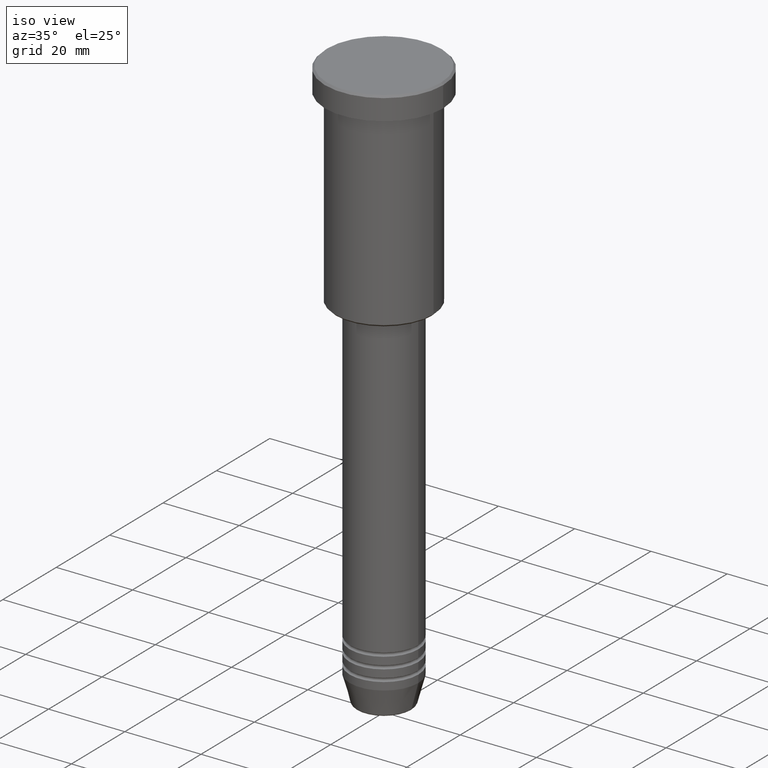
[diagram: clean part render]
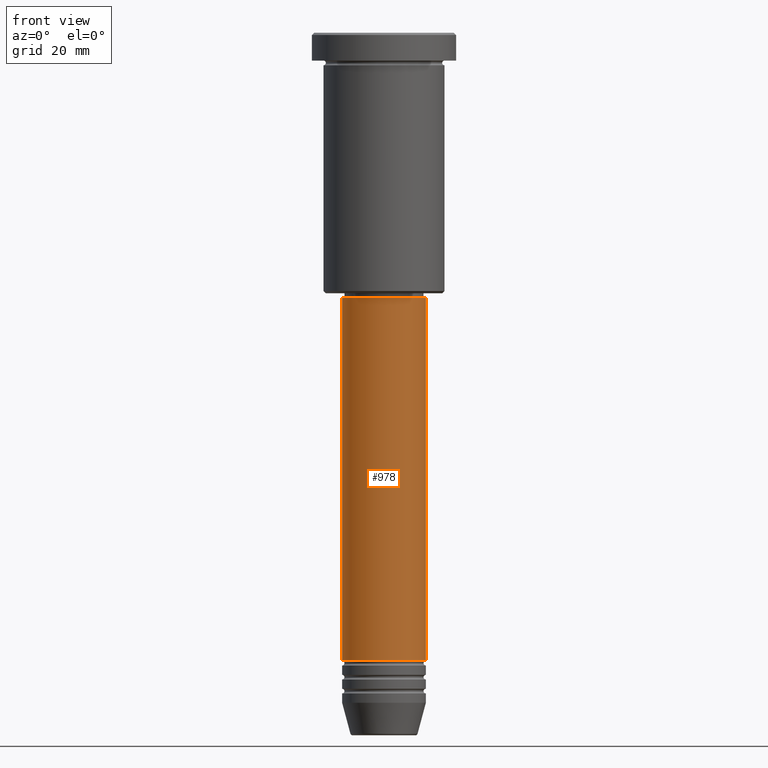
[diagram: tour spotlight — one face highlighted and labeled with its STEP entity id]
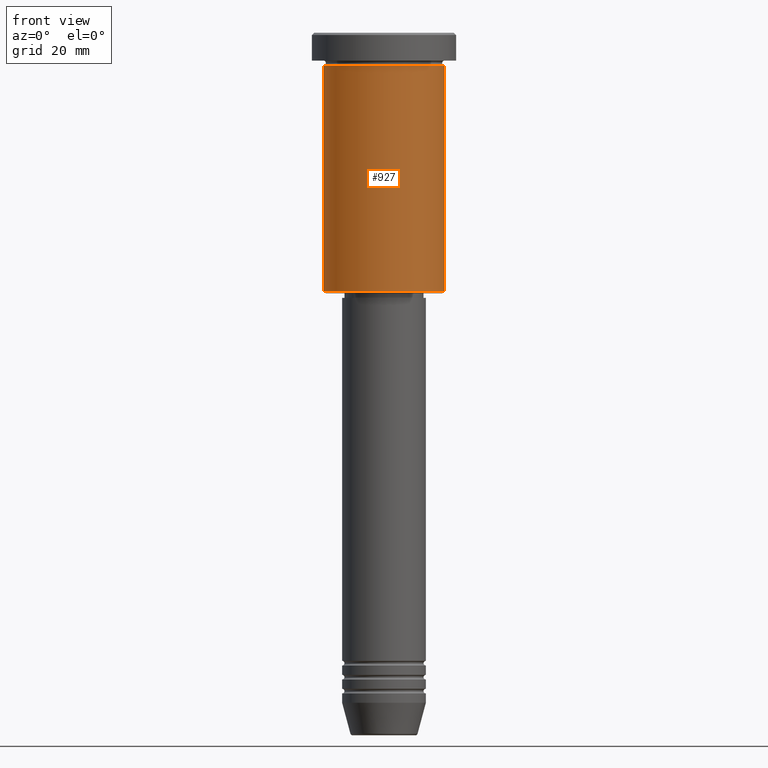
[diagram: tour spotlight — one face highlighted and labeled with its STEP entity id]
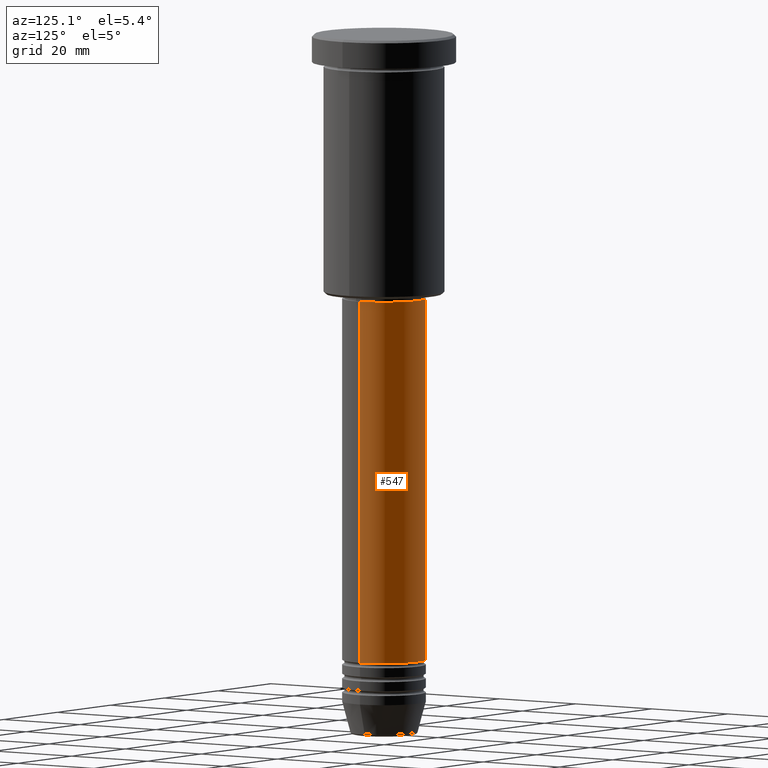
[diagram: tour spotlight — one face highlighted and labeled with its STEP entity id]
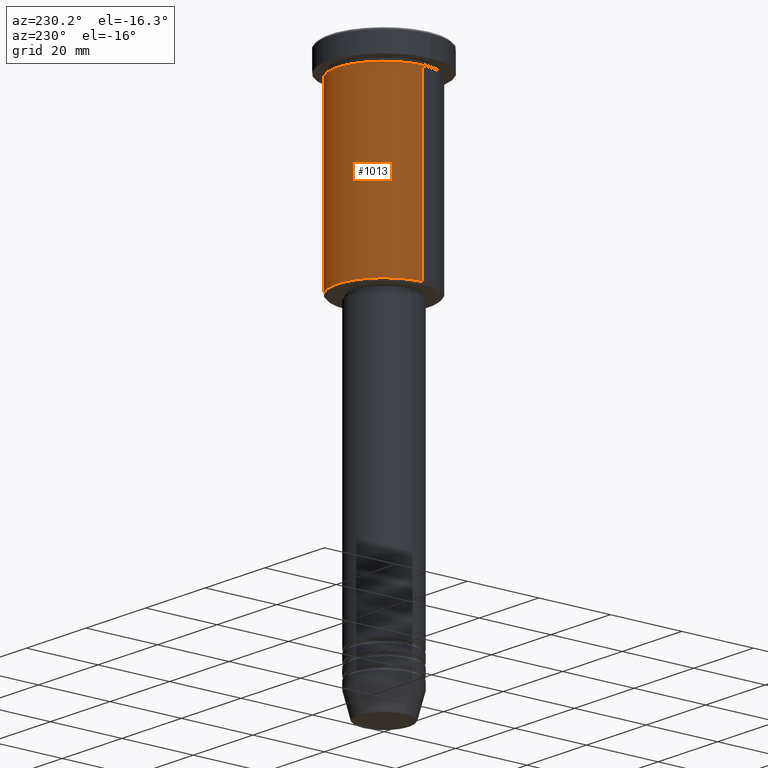
[diagram: tour spotlight — one face highlighted and labeled with its STEP entity id]
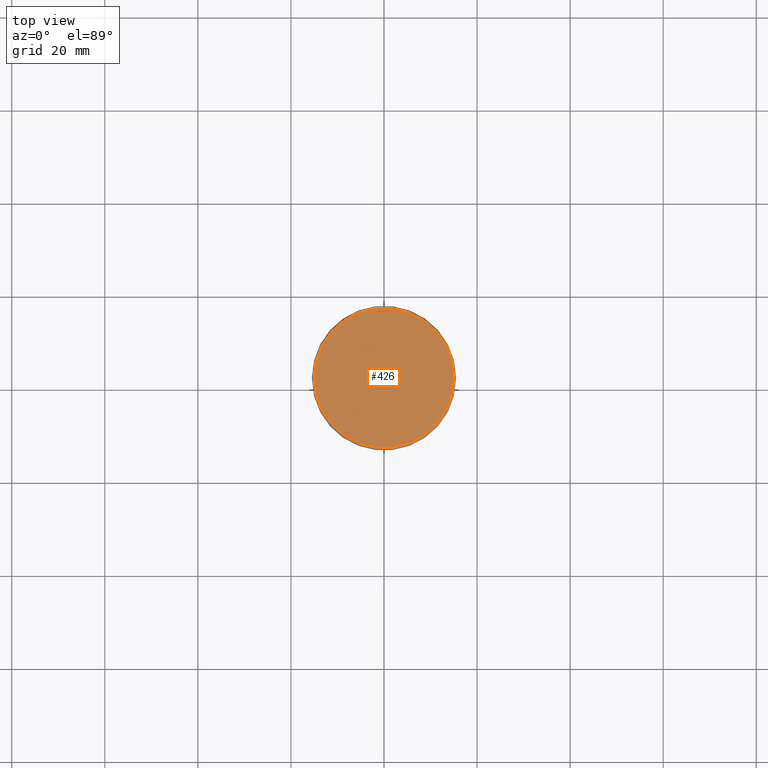
[diagram: tour spotlight — one face highlighted and labeled with its STEP entity id]
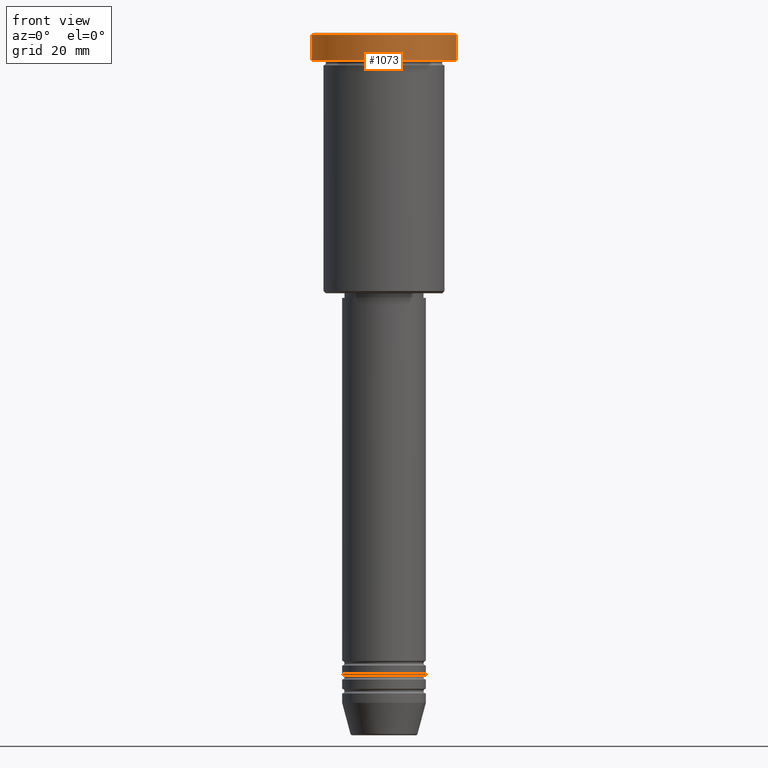
[diagram: tour spotlight — one face highlighted and labeled with its STEP entity id]
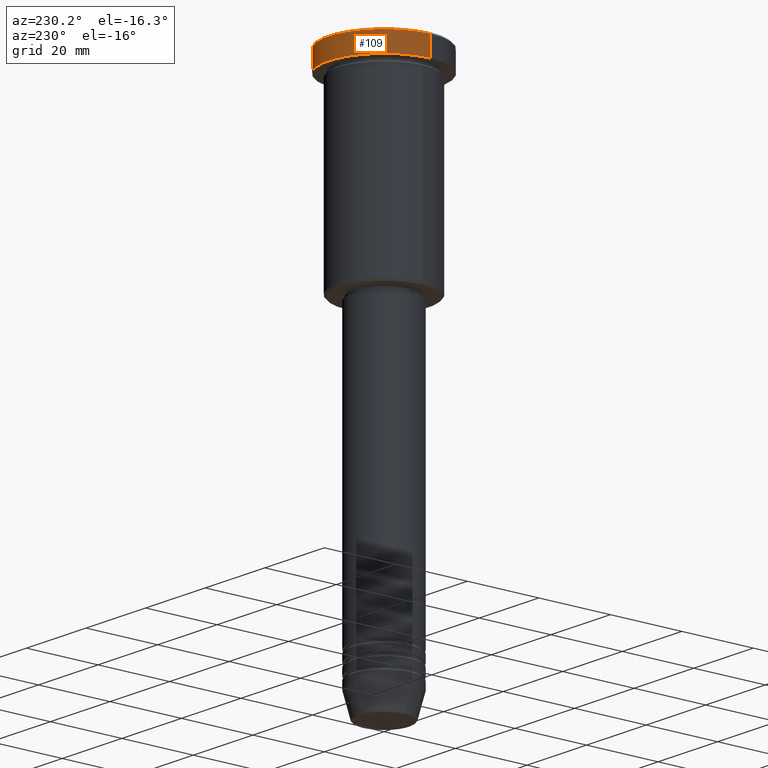
[diagram: tour spotlight — one face highlighted and labeled with its STEP entity id]
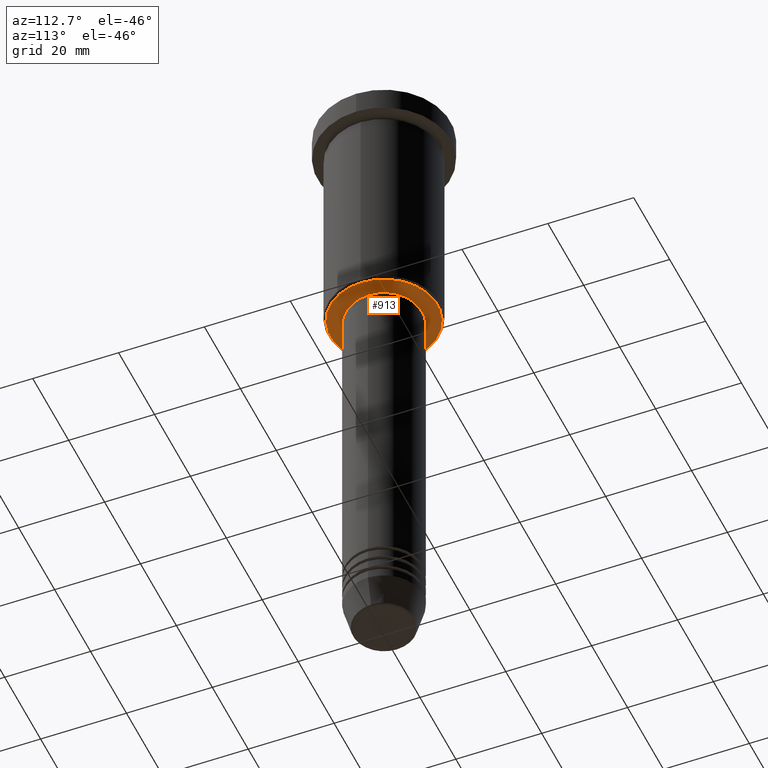
[diagram: tour spotlight — one face highlighted and labeled with its STEP entity id]
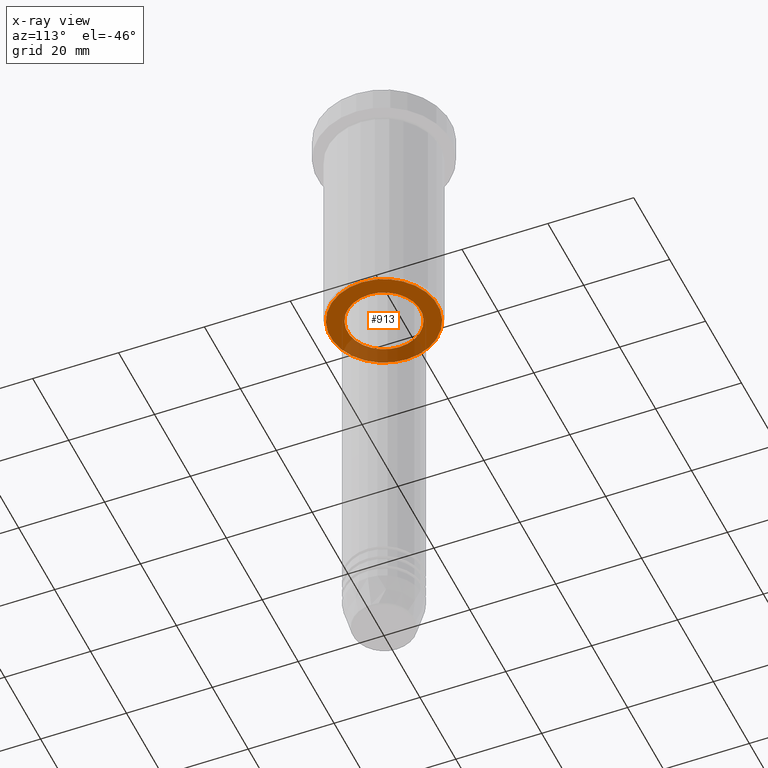
[diagram: x-ray of the same camera — body ghosted, this tour face saturated]
A machine part: a face-by-face anatomy tour. The part has 43 B-rep faces; the first image is the clean iso view, then the 8 largest visible faces are spotlighted one at a time (largest first), each with its STEP entity span.

Face 1 — front view, entity #978. In plain terms, the highlighted cylindrical surface (partial cylindrical patch) has radius 9 mm, axis along (-0, -0, 1).
Definition (entity closure, byte-faithful):
#27 = AXIS2_PLACEMENT_3D ( 'NONE', #415, #954, #206 ) ;
#32 = EDGE_CURVE ( 'NONE', #301, #732, #386, .T. ) ;
#72 = LINE ( 'NONE', #969, #654 ) ;
#81 = CIRCLE ( 'NONE', #740, 9.000000000000000000 ) ;
#98 = CARTESIAN_POINT ( 'NONE',  ( 9.000000000000000000, 0.000000000000000000, -134.9999999999999716 ) ) ;
#123 = CARTESIAN_POINT ( 'NONE',  ( 0.000000000000000000, 0.000000000000000000, -134.9999999999999716 ) ) ;
#161 = DIRECTION ( 'NONE',  ( -0.000000000000000000, -0.000000000000000000, 1.000000000000000000 ) ) ;
#166 = CARTESIAN_POINT ( 'NONE',  ( 9.000000000000000000, 0.000000000000000000, -57.00000000000001421 ) ) ;
#206 = DIRECTION ( 'NONE',  ( 1.000000000000000000, 0.000000000000000000, 0.000000000000000000 ) ) ;
#242 = DIRECTION ( 'NONE',  ( -0.000000000000000000, -0.000000000000000000, 1.000000000000000000 ) ) ;
#252 = CARTESIAN_POINT ( 'NONE',  ( 9.000000000000000000, 0.000000000000000000, 0.000000000000000000 ) ) ;
#264 = DIRECTION ( 'NONE',  ( 1.000000000000000000, 0.000000000000000000, 0.000000000000000000 ) ) ;
#298 = VERTEX_POINT ( 'NONE', #856 ) ;
#301 = VERTEX_POINT ( 'NONE', #877 ) ;
#321 = CYLINDRICAL_SURFACE ( 'NONE', #27, 9.000000000000000000 ) ;
#378 = CARTESIAN_POINT ( 'NONE',  ( 0.000000000000000000, 0.000000000000000000, -57.00000000000001421 ) ) ;
#386 = CIRCLE ( 'NONE', #1041, 9.000000000000000000 ) ;
#415 = CARTESIAN_POINT ( 'NONE',  ( 0.000000000000000000, 0.000000000000000000, 0.000000000000000000 ) ) ;
#462 = ORIENTED_EDGE ( 'NONE', *, *, #641, .T. ) ;
#574 = ORIENTED_EDGE ( 'NONE', *, *, #32, .F. ) ;
#613 = VECTOR ( 'NONE', #242, 1000.000000000000000 ) ;
#641 = EDGE_CURVE ( 'NONE', #298, #897, #81, .T. ) ;
#654 = VECTOR ( 'NONE', #161, 1000.000000000000000 ) ;
#713 = DIRECTION ( 'NONE',  ( -0.000000000000000000, -0.000000000000000000, 1.000000000000000000 ) ) ;
#732 = VERTEX_POINT ( 'NONE', #166 ) ;
#734 = EDGE_CURVE ( 'NONE', #897, #732, #1057, .T. ) ;
#740 = AXIS2_PLACEMENT_3D ( 'NONE', #123, #973, #1055 ) ;
#856 = CARTESIAN_POINT ( 'NONE',  ( -9.000000000000000000, 1.102182119232617714E-15, -134.9999999999999716 ) ) ;
#877 = CARTESIAN_POINT ( 'NONE',  ( -9.000000000000000000, 1.102182119232617714E-15, -57.00000000000001421 ) ) ;
#897 = VERTEX_POINT ( 'NONE', #98 ) ;
#909 = EDGE_LOOP ( 'NONE', ( #1098, #462, #1021, #574 ) ) ;
#939 = FACE_OUTER_BOUND ( 'NONE', #909, .T. ) ;
#954 = DIRECTION ( 'NONE',  ( -0.000000000000000000, -0.000000000000000000, 1.000000000000000000 ) ) ;
#969 = CARTESIAN_POINT ( 'NONE',  ( -9.000000000000000000, 1.102182119232617714E-15, 0.000000000000000000 ) ) ;
#973 = DIRECTION ( 'NONE',  ( -0.000000000000000000, -0.000000000000000000, 1.000000000000000000 ) ) ;
#978 = ADVANCED_FACE ( 'NONE', ( #939 ), #321, .T. ) ;
#1021 = ORIENTED_EDGE ( 'NONE', *, *, #734, .T. ) ;
#1041 = AXIS2_PLACEMENT_3D ( 'NONE', #378, #713, #264 ) ;
#1055 = DIRECTION ( 'NONE',  ( 1.000000000000000000, 0.000000000000000000, 0.000000000000000000 ) ) ;
#1057 = LINE ( 'NONE', #252, #613 ) ;
#1098 = ORIENTED_EDGE ( 'NONE', *, *, #1160, .F. ) ;
#1160 = EDGE_CURVE ( 'NONE', #298, #301, #72, .T. ) ;

Face 2 — front view, entity #927. In plain terms, the highlighted cylindrical surface (partial cylindrical patch) has radius 13 mm, axis along (-0, -0, 1).
Definition (entity closure, byte-faithful):
#10 = CYLINDRICAL_SURFACE ( 'NONE', #1065, 13.00000000000000000 ) ;
#46 = CIRCLE ( 'NONE', #615, 13.00000000000000000 ) ;
#68 = ORIENTED_EDGE ( 'NONE', *, *, #861, .T. ) ;
#83 = CARTESIAN_POINT ( 'NONE',  ( 0.000000000000000000, 0.000000000000000000, -55.50000000000002132 ) ) ;
#176 = LINE ( 'NONE', #187, #1009 ) ;
#186 = VERTEX_POINT ( 'NONE', #484 ) ;
#187 = CARTESIAN_POINT ( 'NONE',  ( -13.00000000000000000, 1.592040838891559095E-15, 0.000000000000000000 ) ) ;
#208 = EDGE_LOOP ( 'NONE', ( #784, #1032, #68, #1151 ) ) ;
#227 = CARTESIAN_POINT ( 'NONE',  ( 0.000000000000000000, 0.000000000000000000, -6.999999999999995559 ) ) ;
#232 = CARTESIAN_POINT ( 'NONE',  ( -13.00000000000000000, 1.592040838891559095E-15, -6.999999999999995559 ) ) ;
#249 = DIRECTION ( 'NONE',  ( -0.000000000000000000, -0.000000000000000000, 1.000000000000000000 ) ) ;
#256 = VECTOR ( 'NONE', #725, 1000.000000000000000 ) ;
#281 = DIRECTION ( 'NONE',  ( -0.000000000000000000, -0.000000000000000000, 1.000000000000000000 ) ) ;
#303 = CARTESIAN_POINT ( 'NONE',  ( 13.00000000000000000, 0.000000000000000000, -55.50000000000002132 ) ) ;
#374 = CARTESIAN_POINT ( 'NONE',  ( 0.000000000000000000, 0.000000000000000000, 0.000000000000000000 ) ) ;
#477 = DIRECTION ( 'NONE',  ( 1.000000000000000000, 0.000000000000000000, 0.000000000000000000 ) ) ;
#484 = CARTESIAN_POINT ( 'NONE',  ( 13.00000000000000000, 0.000000000000000000, -6.999999999999995559 ) ) ;
#535 = LINE ( 'NONE', #637, #256 ) ;
#545 = VERTEX_POINT ( 'NONE', #303 ) ;
#555 = CIRCLE ( 'NONE', #1167, 13.00000000000000000 ) ;
#573 = EDGE_CURVE ( 'NONE', #767, #186, #555, .T. ) ;
#615 = AXIS2_PLACEMENT_3D ( 'NONE', #83, #249, #714 ) ;
#622 = CARTESIAN_POINT ( 'NONE',  ( -13.00000000000000000, 1.592040838891559095E-15, -55.50000000000002132 ) ) ;
#637 = CARTESIAN_POINT ( 'NONE',  ( 13.00000000000000000, 0.000000000000000000, 0.000000000000000000 ) ) ;
#714 = DIRECTION ( 'NONE',  ( -1.000000000000000000, 0.000000000000000000, 0.000000000000000000 ) ) ;
#725 = DIRECTION ( 'NONE',  ( -0.000000000000000000, -0.000000000000000000, 1.000000000000000000 ) ) ;
#757 = DIRECTION ( 'NONE',  ( 1.000000000000000000, 0.000000000000000000, 0.000000000000000000 ) ) ;
#767 = VERTEX_POINT ( 'NONE', #232 ) ;
#784 = ORIENTED_EDGE ( 'NONE', *, *, #840, .F. ) ;
#824 = VERTEX_POINT ( 'NONE', #622 ) ;
#840 = EDGE_CURVE ( 'NONE', #824, #767, #176, .T. ) ;
#861 = EDGE_CURVE ( 'NONE', #545, #186, #535, .T. ) ;
#880 = FACE_OUTER_BOUND ( 'NONE', #208, .T. ) ;
#927 = ADVANCED_FACE ( 'NONE', ( #880 ), #10, .T. ) ;
#977 = DIRECTION ( 'NONE',  ( -0.000000000000000000, -0.000000000000000000, 1.000000000000000000 ) ) ;
#1009 = VECTOR ( 'NONE', #977, 1000.000000000000000 ) ;
#1032 = ORIENTED_EDGE ( 'NONE', *, *, #1169, .T. ) ;
#1065 = AXIS2_PLACEMENT_3D ( 'NONE', #374, #281, #757 ) ;
#1111 = DIRECTION ( 'NONE',  ( -0.000000000000000000, -0.000000000000000000, 1.000000000000000000 ) ) ;
#1151 = ORIENTED_EDGE ( 'NONE', *, *, #573, .F. ) ;
#1167 = AXIS2_PLACEMENT_3D ( 'NONE', #227, #1111, #477 ) ;
#1169 = EDGE_CURVE ( 'NONE', #824, #545, #46, .T. ) ;

Face 3 — auxiliary view, entity #547. In plain terms, the highlighted cylindrical surface (partial cylindrical patch) has radius 9 mm, axis along (-0, -0, 1).
Definition (entity closure, byte-faithful):
#56 = EDGE_CURVE ( 'NONE', #732, #301, #1103, .T. ) ;
#72 = LINE ( 'NONE', #969, #654 ) ;
#98 = CARTESIAN_POINT ( 'NONE',  ( 9.000000000000000000, 0.000000000000000000, -134.9999999999999716 ) ) ;
#113 = DIRECTION ( 'NONE',  ( 1.000000000000000000, 0.000000000000000000, 0.000000000000000000 ) ) ;
#124 = CARTESIAN_POINT ( 'NONE',  ( 0.000000000000000000, 0.000000000000000000, -134.9999999999999716 ) ) ;
#142 = EDGE_CURVE ( 'NONE', #897, #298, #156, .T. ) ;
#156 = CIRCLE ( 'NONE', #607, 9.000000000000000000 ) ;
#161 = DIRECTION ( 'NONE',  ( -0.000000000000000000, -0.000000000000000000, 1.000000000000000000 ) ) ;
#166 = CARTESIAN_POINT ( 'NONE',  ( 9.000000000000000000, 0.000000000000000000, -57.00000000000001421 ) ) ;
#215 = DIRECTION ( 'NONE',  ( -0.000000000000000000, -0.000000000000000000, 1.000000000000000000 ) ) ;
#242 = DIRECTION ( 'NONE',  ( -0.000000000000000000, -0.000000000000000000, 1.000000000000000000 ) ) ;
#252 = CARTESIAN_POINT ( 'NONE',  ( 9.000000000000000000, 0.000000000000000000, 0.000000000000000000 ) ) ;
#270 = DIRECTION ( 'NONE',  ( -0.000000000000000000, -0.000000000000000000, 1.000000000000000000 ) ) ;
#272 = ORIENTED_EDGE ( 'NONE', *, *, #734, .F. ) ;
#274 = ORIENTED_EDGE ( 'NONE', *, *, #1160, .T. ) ;
#298 = VERTEX_POINT ( 'NONE', #856 ) ;
#300 = FACE_OUTER_BOUND ( 'NONE', #1123, .T. ) ;
#301 = VERTEX_POINT ( 'NONE', #877 ) ;
#387 = AXIS2_PLACEMENT_3D ( 'NONE', #809, #270, #1096 ) ;
#422 = ORIENTED_EDGE ( 'NONE', *, *, #56, .F. ) ;
#488 = CARTESIAN_POINT ( 'NONE',  ( 0.000000000000000000, 0.000000000000000000, 0.000000000000000000 ) ) ;
#547 = ADVANCED_FACE ( 'NONE', ( #300 ), #1010, .T. ) ;
#607 = AXIS2_PLACEMENT_3D ( 'NONE', #124, #215, #1039 ) ;
#613 = VECTOR ( 'NONE', #242, 1000.000000000000000 ) ;
#654 = VECTOR ( 'NONE', #161, 1000.000000000000000 ) ;
#732 = VERTEX_POINT ( 'NONE', #166 ) ;
#734 = EDGE_CURVE ( 'NONE', #897, #732, #1057, .T. ) ;
#755 = AXIS2_PLACEMENT_3D ( 'NONE', #488, #920, #113 ) ;
#809 = CARTESIAN_POINT ( 'NONE',  ( 0.000000000000000000, 0.000000000000000000, -57.00000000000001421 ) ) ;
#856 = CARTESIAN_POINT ( 'NONE',  ( -9.000000000000000000, 1.102182119232617714E-15, -134.9999999999999716 ) ) ;
#877 = CARTESIAN_POINT ( 'NONE',  ( -9.000000000000000000, 1.102182119232617714E-15, -57.00000000000001421 ) ) ;
#897 = VERTEX_POINT ( 'NONE', #98 ) ;
#920 = DIRECTION ( 'NONE',  ( -0.000000000000000000, -0.000000000000000000, 1.000000000000000000 ) ) ;
#969 = CARTESIAN_POINT ( 'NONE',  ( -9.000000000000000000, 1.102182119232617714E-15, 0.000000000000000000 ) ) ;
#1010 = CYLINDRICAL_SURFACE ( 'NONE', #755, 9.000000000000000000 ) ;
#1026 = ORIENTED_EDGE ( 'NONE', *, *, #142, .T. ) ;
#1039 = DIRECTION ( 'NONE',  ( 1.000000000000000000, 0.000000000000000000, 0.000000000000000000 ) ) ;
#1057 = LINE ( 'NONE', #252, #613 ) ;
#1096 = DIRECTION ( 'NONE',  ( 1.000000000000000000, 0.000000000000000000, 0.000000000000000000 ) ) ;
#1103 = CIRCLE ( 'NONE', #387, 9.000000000000000000 ) ;
#1123 = EDGE_LOOP ( 'NONE', ( #1026, #274, #422, #272 ) ) ;
#1160 = EDGE_CURVE ( 'NONE', #298, #301, #72, .T. ) ;

Face 4 — auxiliary view, entity #1013. In plain terms, the highlighted cylindrical surface (partial cylindrical patch) has radius 13 mm, axis along (-0, -0, 1).
Definition (entity closure, byte-faithful):
#49 = ORIENTED_EDGE ( 'NONE', *, *, #70, .F. ) ;
#70 = EDGE_CURVE ( 'NONE', #186, #767, #796, .T. ) ;
#128 = DIRECTION ( 'NONE',  ( 1.000000000000000000, 0.000000000000000000, 0.000000000000000000 ) ) ;
#176 = LINE ( 'NONE', #187, #1009 ) ;
#181 = EDGE_CURVE ( 'NONE', #545, #824, #1044, .T. ) ;
#186 = VERTEX_POINT ( 'NONE', #484 ) ;
#187 = CARTESIAN_POINT ( 'NONE',  ( -13.00000000000000000, 1.592040838891559095E-15, 0.000000000000000000 ) ) ;
#200 = AXIS2_PLACEMENT_3D ( 'NONE', #213, #679, #567 ) ;
#213 = CARTESIAN_POINT ( 'NONE',  ( 0.000000000000000000, 0.000000000000000000, -55.50000000000002132 ) ) ;
#232 = CARTESIAN_POINT ( 'NONE',  ( -13.00000000000000000, 1.592040838891559095E-15, -6.999999999999995559 ) ) ;
#256 = VECTOR ( 'NONE', #725, 1000.000000000000000 ) ;
#283 = CARTESIAN_POINT ( 'NONE',  ( 0.000000000000000000, 0.000000000000000000, -6.999999999999995559 ) ) ;
#303 = CARTESIAN_POINT ( 'NONE',  ( 13.00000000000000000, 0.000000000000000000, -55.50000000000002132 ) ) ;
#305 = CYLINDRICAL_SURFACE ( 'NONE', #759, 13.00000000000000000 ) ;
#306 = AXIS2_PLACEMENT_3D ( 'NONE', #283, #644, #128 ) ;
#315 = CARTESIAN_POINT ( 'NONE',  ( 0.000000000000000000, 0.000000000000000000, 0.000000000000000000 ) ) ;
#440 = ORIENTED_EDGE ( 'NONE', *, *, #181, .T. ) ;
#484 = CARTESIAN_POINT ( 'NONE',  ( 13.00000000000000000, 0.000000000000000000, -6.999999999999995559 ) ) ;
#494 = DIRECTION ( 'NONE',  ( -0.000000000000000000, -0.000000000000000000, 1.000000000000000000 ) ) ;
#499 = DIRECTION ( 'NONE',  ( 1.000000000000000000, 0.000000000000000000, 0.000000000000000000 ) ) ;
#525 = ORIENTED_EDGE ( 'NONE', *, *, #840, .T. ) ;
#535 = LINE ( 'NONE', #637, #256 ) ;
#545 = VERTEX_POINT ( 'NONE', #303 ) ;
#567 = DIRECTION ( 'NONE',  ( -1.000000000000000000, 0.000000000000000000, 0.000000000000000000 ) ) ;
#622 = CARTESIAN_POINT ( 'NONE',  ( -13.00000000000000000, 1.592040838891559095E-15, -55.50000000000002132 ) ) ;
#637 = CARTESIAN_POINT ( 'NONE',  ( 13.00000000000000000, 0.000000000000000000, 0.000000000000000000 ) ) ;
#644 = DIRECTION ( 'NONE',  ( -0.000000000000000000, -0.000000000000000000, 1.000000000000000000 ) ) ;
#679 = DIRECTION ( 'NONE',  ( -0.000000000000000000, -0.000000000000000000, 1.000000000000000000 ) ) ;
#725 = DIRECTION ( 'NONE',  ( -0.000000000000000000, -0.000000000000000000, 1.000000000000000000 ) ) ;
#759 = AXIS2_PLACEMENT_3D ( 'NONE', #315, #494, #499 ) ;
#767 = VERTEX_POINT ( 'NONE', #232 ) ;
#796 = CIRCLE ( 'NONE', #306, 13.00000000000000000 ) ;
#824 = VERTEX_POINT ( 'NONE', #622 ) ;
#840 = EDGE_CURVE ( 'NONE', #824, #767, #176, .T. ) ;
#861 = EDGE_CURVE ( 'NONE', #545, #186, #535, .T. ) ;
#876 = ORIENTED_EDGE ( 'NONE', *, *, #861, .F. ) ;
#977 = DIRECTION ( 'NONE',  ( -0.000000000000000000, -0.000000000000000000, 1.000000000000000000 ) ) ;
#1009 = VECTOR ( 'NONE', #977, 1000.000000000000000 ) ;
#1013 = ADVANCED_FACE ( 'NONE', ( #1140 ), #305, .T. ) ;
#1044 = CIRCLE ( 'NONE', #200, 13.00000000000000000 ) ;
#1059 = EDGE_LOOP ( 'NONE', ( #440, #525, #49, #876 ) ) ;
#1140 = FACE_OUTER_BOUND ( 'NONE', #1059, .T. ) ;

Face 5 — top view, entity #426. In plain terms, the highlighted planar face has unit normal (0, -0, 1).
Definition (entity closure, byte-faithful):
#76 = CARTESIAN_POINT ( 'NONE',  ( 0.000000000000000000, 0.000000000000000000, 0.000000000000000000 ) ) ;
#95 = ORIENTED_EDGE ( 'NONE', *, *, #118, .T. ) ;
#118 = EDGE_CURVE ( 'NONE', #974, #875, #498, .T. ) ;
#172 = CARTESIAN_POINT ( 'NONE',  ( 0.000000000000000000, 0.000000000000000000, 0.000000000000000000 ) ) ;
#263 = PLANE ( 'NONE',  #669 ) ;
#316 = EDGE_CURVE ( 'NONE', #875, #974, #1005, .T. ) ;
#364 = DIRECTION ( 'NONE',  ( 0.000000000000000000, -0.000000000000000000, 1.000000000000000000 ) ) ;
#421 = CARTESIAN_POINT ( 'NONE',  ( 14.99999999999997158, 1.867586368699711798E-15, 0.000000000000000000 ) ) ;
#426 = ADVANCED_FACE ( 'NONE', ( #530 ), #263, .T. ) ;
#483 = AXIS2_PLACEMENT_3D ( 'NONE', #763, #1128, #1028 ) ;
#498 = CIRCLE ( 'NONE', #483, 14.99999999999997158 ) ;
#530 = FACE_OUTER_BOUND ( 'NONE', #1145, .T. ) ;
#569 = AXIS2_PLACEMENT_3D ( 'NONE', #76, #960, #975 ) ;
#669 = AXIS2_PLACEMENT_3D ( 'NONE', #172, #364, #712 ) ;
#712 = DIRECTION ( 'NONE',  ( 1.000000000000000000, 0.000000000000000000, 0.000000000000000000 ) ) ;
#763 = CARTESIAN_POINT ( 'NONE',  ( 0.000000000000000000, 0.000000000000000000, 0.000000000000000000 ) ) ;
#875 = VERTEX_POINT ( 'NONE', #1080 ) ;
#918 = ORIENTED_EDGE ( 'NONE', *, *, #316, .T. ) ;
#960 = DIRECTION ( 'NONE',  ( -0.000000000000000000, -0.000000000000000000, 1.000000000000000000 ) ) ;
#974 = VERTEX_POINT ( 'NONE', #421 ) ;
#975 = DIRECTION ( 'NONE',  ( 1.000000000000000000, 0.000000000000000000, 0.000000000000000000 ) ) ;
#1005 = CIRCLE ( 'NONE', #569, 14.99999999999997158 ) ;
#1028 = DIRECTION ( 'NONE',  ( 1.000000000000000000, 0.000000000000000000, 0.000000000000000000 ) ) ;
#1080 = CARTESIAN_POINT ( 'NONE',  ( -14.99999999999997158, 0.000000000000000000, 0.000000000000000000 ) ) ;
#1128 = DIRECTION ( 'NONE',  ( -0.000000000000000000, -0.000000000000000000, 1.000000000000000000 ) ) ;
#1145 = EDGE_LOOP ( 'NONE', ( #918, #95 ) ) ;

Face 6 — front view, entity #1073. In plain terms, the highlighted cylindrical surface (partial cylindrical patch) has radius 15.5 mm, axis along (-0, -0, 1).
Definition (entity closure, byte-faithful):
#22 = CYLINDRICAL_SURFACE ( 'NONE', #393, 15.50000000000000000 ) ;
#24 = CIRCLE ( 'NONE', #907, 15.50000000000000000 ) ;
#38 = CARTESIAN_POINT ( 'NONE',  ( 15.50000000000000000, 0.000000000000000000, 0.000000000000000000 ) ) ;
#40 = FACE_OUTER_BOUND ( 'NONE', #991, .T. ) ;
#96 = EDGE_CURVE ( 'NONE', #431, #1182, #1017, .T. ) ;
#112 = DIRECTION ( 'NONE',  ( 1.000000000000000000, 0.000000000000000000, 0.000000000000000000 ) ) ;
#129 = DIRECTION ( 'NONE',  ( -0.000000000000000000, -0.000000000000000000, 1.000000000000000000 ) ) ;
#134 = VERTEX_POINT ( 'NONE', #1020 ) ;
#184 = VECTOR ( 'NONE', #129, 1000.000000000000000 ) ;
#222 = ORIENTED_EDGE ( 'NONE', *, *, #946, .F. ) ;
#231 = EDGE_CURVE ( 'NONE', #134, #431, #24, .T. ) ;
#280 = EDGE_CURVE ( 'NONE', #1182, #282, #1024, .T. ) ;
#282 = VERTEX_POINT ( 'NONE', #951 ) ;
#287 = DIRECTION ( 'NONE',  ( -0.000000000000000000, -0.000000000000000000, 1.000000000000000000 ) ) ;
#341 = CARTESIAN_POINT ( 'NONE',  ( 15.50000000000000000, 0.000000000000000000, -0.5000000000000264233 ) ) ;
#384 = CARTESIAN_POINT ( 'NONE',  ( -15.50000000000000000, 1.898202538678397557E-15, 0.000000000000000000 ) ) ;
#393 = AXIS2_PLACEMENT_3D ( 'NONE', #730, #287, #112 ) ;
#397 = DIRECTION ( 'NONE',  ( -0.000000000000000000, -0.000000000000000000, 1.000000000000000000 ) ) ;
#420 = DIRECTION ( 'NONE',  ( 1.000000000000000000, 0.000000000000000000, 0.000000000000000000 ) ) ;
#431 = VERTEX_POINT ( 'NONE', #538 ) ;
#513 = DIRECTION ( 'NONE',  ( 0.000000000000000000, 0.000000000000000000, -1.000000000000000000 ) ) ;
#538 = CARTESIAN_POINT ( 'NONE',  ( 15.50000000000000000, 0.000000000000000000, -5.999999999999995559 ) ) ;
#560 = LINE ( 'NONE', #384, #184 ) ;
#600 = CARTESIAN_POINT ( 'NONE',  ( 0.000000000000000000, 0.000000000000000000, -0.5000000000000264233 ) ) ;
#609 = AXIS2_PLACEMENT_3D ( 'NONE', #600, #513, #420 ) ;
#694 = CARTESIAN_POINT ( 'NONE',  ( 0.000000000000000000, 0.000000000000000000, -5.999999999999995559 ) ) ;
#708 = DIRECTION ( 'NONE',  ( -0.000000000000000000, -0.000000000000000000, 1.000000000000000000 ) ) ;
#730 = CARTESIAN_POINT ( 'NONE',  ( 0.000000000000000000, 0.000000000000000000, 0.000000000000000000 ) ) ;
#781 = DIRECTION ( 'NONE',  ( 1.000000000000000000, 0.000000000000000000, 0.000000000000000000 ) ) ;
#864 = VECTOR ( 'NONE', #397, 1000.000000000000000 ) ;
#907 = AXIS2_PLACEMENT_3D ( 'NONE', #694, #708, #781 ) ;
#946 = EDGE_CURVE ( 'NONE', #134, #282, #560, .T. ) ;
#951 = CARTESIAN_POINT ( 'NONE',  ( -15.50000000000000000, 1.898202538678397557E-15, -0.5000000000000264233 ) ) ;
#963 = ORIENTED_EDGE ( 'NONE', *, *, #280, .T. ) ;
#991 = EDGE_LOOP ( 'NONE', ( #222, #1016, #1086, #963 ) ) ;
#1016 = ORIENTED_EDGE ( 'NONE', *, *, #231, .T. ) ;
#1017 = LINE ( 'NONE', #38, #864 ) ;
#1020 = CARTESIAN_POINT ( 'NONE',  ( -15.50000000000000000, 1.898202538678397557E-15, -5.999999999999995559 ) ) ;
#1024 = CIRCLE ( 'NONE', #609, 15.50000000000000000 ) ;
#1073 = ADVANCED_FACE ( 'NONE', ( #40 ), #22, .T. ) ;
#1086 = ORIENTED_EDGE ( 'NONE', *, *, #96, .T. ) ;
#1182 = VERTEX_POINT ( 'NONE', #341 ) ;

Face 7 — auxiliary view, entity #109. In plain terms, the highlighted cylindrical surface (partial cylindrical patch) has radius 15.5 mm, axis along (-0, -0, 1).
Definition (entity closure, byte-faithful):
#23 = FACE_OUTER_BOUND ( 'NONE', #434, .T. ) ;
#38 = CARTESIAN_POINT ( 'NONE',  ( 15.50000000000000000, 0.000000000000000000, 0.000000000000000000 ) ) ;
#96 = EDGE_CURVE ( 'NONE', #431, #1182, #1017, .T. ) ;
#97 = ORIENTED_EDGE ( 'NONE', *, *, #946, .T. ) ;
#107 = CARTESIAN_POINT ( 'NONE',  ( 0.000000000000000000, 0.000000000000000000, -5.999999999999995559 ) ) ;
#109 = ADVANCED_FACE ( 'NONE', ( #23 ), #935, .T. ) ;
#129 = DIRECTION ( 'NONE',  ( -0.000000000000000000, -0.000000000000000000, 1.000000000000000000 ) ) ;
#134 = VERTEX_POINT ( 'NONE', #1020 ) ;
#184 = VECTOR ( 'NONE', #129, 1000.000000000000000 ) ;
#271 = AXIS2_PLACEMENT_3D ( 'NONE', #896, #1179, #811 ) ;
#282 = VERTEX_POINT ( 'NONE', #951 ) ;
#341 = CARTESIAN_POINT ( 'NONE',  ( 15.50000000000000000, 0.000000000000000000, -0.5000000000000264233 ) ) ;
#356 = ORIENTED_EDGE ( 'NONE', *, *, #96, .F. ) ;
#384 = CARTESIAN_POINT ( 'NONE',  ( -15.50000000000000000, 1.898202538678397557E-15, 0.000000000000000000 ) ) ;
#397 = DIRECTION ( 'NONE',  ( -0.000000000000000000, -0.000000000000000000, 1.000000000000000000 ) ) ;
#404 = DIRECTION ( 'NONE',  ( 1.000000000000000000, 0.000000000000000000, 0.000000000000000000 ) ) ;
#431 = VERTEX_POINT ( 'NONE', #538 ) ;
#434 = EDGE_LOOP ( 'NONE', ( #629, #97, #1176, #356 ) ) ;
#490 = CARTESIAN_POINT ( 'NONE',  ( 0.000000000000000000, 0.000000000000000000, 0.000000000000000000 ) ) ;
#538 = CARTESIAN_POINT ( 'NONE',  ( 15.50000000000000000, 0.000000000000000000, -5.999999999999995559 ) ) ;
#560 = LINE ( 'NONE', #384, #184 ) ;
#588 = AXIS2_PLACEMENT_3D ( 'NONE', #490, #743, #404 ) ;
#629 = ORIENTED_EDGE ( 'NONE', *, *, #1000, .T. ) ;
#743 = DIRECTION ( 'NONE',  ( -0.000000000000000000, -0.000000000000000000, 1.000000000000000000 ) ) ;
#764 = DIRECTION ( 'NONE',  ( 1.000000000000000000, 0.000000000000000000, 0.000000000000000000 ) ) ;
#798 = CIRCLE ( 'NONE', #271, 15.50000000000000000 ) ;
#811 = DIRECTION ( 'NONE',  ( 1.000000000000000000, 0.000000000000000000, 0.000000000000000000 ) ) ;
#857 = EDGE_CURVE ( 'NONE', #282, #1182, #798, .T. ) ;
#864 = VECTOR ( 'NONE', #397, 1000.000000000000000 ) ;
#896 = CARTESIAN_POINT ( 'NONE',  ( 0.000000000000000000, 0.000000000000000000, -0.5000000000000264233 ) ) ;
#935 = CYLINDRICAL_SURFACE ( 'NONE', #588, 15.50000000000000000 ) ;
#946 = EDGE_CURVE ( 'NONE', #134, #282, #560, .T. ) ;
#951 = CARTESIAN_POINT ( 'NONE',  ( -15.50000000000000000, 1.898202538678397557E-15, -0.5000000000000264233 ) ) ;
#972 = CIRCLE ( 'NONE', #1172, 15.50000000000000000 ) ;
#1000 = EDGE_CURVE ( 'NONE', #431, #134, #972, .T. ) ;
#1008 = DIRECTION ( 'NONE',  ( -0.000000000000000000, -0.000000000000000000, 1.000000000000000000 ) ) ;
#1017 = LINE ( 'NONE', #38, #864 ) ;
#1020 = CARTESIAN_POINT ( 'NONE',  ( -15.50000000000000000, 1.898202538678397557E-15, -5.999999999999995559 ) ) ;
#1172 = AXIS2_PLACEMENT_3D ( 'NONE', #107, #1008, #764 ) ;
#1176 = ORIENTED_EDGE ( 'NONE', *, *, #857, .T. ) ;
#1179 = DIRECTION ( 'NONE',  ( 0.000000000000000000, 0.000000000000000000, -1.000000000000000000 ) ) ;
#1182 = VERTEX_POINT ( 'NONE', #341 ) ;

Face 8 — auxiliary view, entity #913. An x-ray twin of the same camera follows (body ghosted, this face saturated) — the face is partly hidden behind the body. In plain terms, the highlighted planar face has unit normal (0, 0, -1).
Definition (entity closure, byte-faithful):
#26 = AXIS2_PLACEMENT_3D ( 'NONE', #983, #199, #87 ) ;
#87 = DIRECTION ( 'NONE',  ( -1.000000000000000000, 0.000000000000000000, 0.000000000000000000 ) ) ;
#137 = CIRCLE ( 'NONE', #1045, 8.499999999999998224 ) ;
#162 = VERTEX_POINT ( 'NONE', #754 ) ;
#177 = CARTESIAN_POINT ( 'NONE',  ( -8.499999999999998224, 1.040949779275249943E-15, -56.00000000000000711 ) ) ;
#199 = DIRECTION ( 'NONE',  ( 0.000000000000000000, 0.000000000000000000, -1.000000000000000000 ) ) ;
#267 = CARTESIAN_POINT ( 'NONE',  ( 0.000000000000000000, 13.00000000000000000, -56.00000000000000711 ) ) ;
#275 = DIRECTION ( 'NONE',  ( 0.000000000000000000, 0.000000000000000000, -1.000000000000000000 ) ) ;
#325 = ORIENTED_EDGE ( 'NONE', *, *, #395, .T. ) ;
#334 = ORIENTED_EDGE ( 'NONE', *, *, #403, .T. ) ;
#344 = CARTESIAN_POINT ( 'NONE',  ( 0.000000000000000000, 0.000000000000000000, -56.00000000000000711 ) ) ;
#347 = VERTEX_POINT ( 'NONE', #980 ) ;
#395 = EDGE_CURVE ( 'NONE', #409, #347, #137, .T. ) ;
#403 = EDGE_CURVE ( 'NONE', #162, #1156, #536, .T. ) ;
#409 = VERTEX_POINT ( 'NONE', #177 ) ;
#436 = DIRECTION ( 'NONE',  ( -1.000000000000000000, 0.000000000000000000, 0.000000000000000000 ) ) ;
#451 = CARTESIAN_POINT ( 'NONE',  ( 0.000000000000000000, 0.000000000000000000, -56.00000000000000711 ) ) ;
#465 = DIRECTION ( 'NONE',  ( -1.000000000000000000, 0.000000000000000000, -0.000000000000000000 ) ) ;
#528 = FACE_OUTER_BOUND ( 'NONE', #1058, .T. ) ;
#536 = CIRCLE ( 'NONE', #26, 12.50000000000001066 ) ;
#572 = AXIS2_PLACEMENT_3D ( 'NONE', #267, #275, #465 ) ;
#670 = CIRCLE ( 'NONE', #819, 12.50000000000001066 ) ;
#675 = EDGE_CURVE ( 'NONE', #1156, #162, #670, .T. ) ;
#715 = FACE_BOUND ( 'NONE', #813, .T. ) ;
#735 = ORIENTED_EDGE ( 'NONE', *, *, #675, .T. ) ;
#754 = CARTESIAN_POINT ( 'NONE',  ( -12.50000000000001066, 1.561424668912876097E-15, -56.00000000000000711 ) ) ;
#760 = ORIENTED_EDGE ( 'NONE', *, *, #1143, .T. ) ;
#782 = CARTESIAN_POINT ( 'NONE',  ( 12.50000000000001066, 0.000000000000000000, -56.00000000000000711 ) ) ;
#808 = DIRECTION ( 'NONE',  ( 1.000000000000000000, 0.000000000000000000, 0.000000000000000000 ) ) ;
#813 = EDGE_LOOP ( 'NONE', ( #760, #325 ) ) ;
#819 = AXIS2_PLACEMENT_3D ( 'NONE', #344, #859, #436 ) ;
#852 = CIRCLE ( 'NONE', #1066, 8.499999999999998224 ) ;
#859 = DIRECTION ( 'NONE',  ( 0.000000000000000000, 0.000000000000000000, -1.000000000000000000 ) ) ;
#894 = CARTESIAN_POINT ( 'NONE',  ( 0.000000000000000000, 0.000000000000000000, -56.00000000000000711 ) ) ;
#913 = ADVANCED_FACE ( 'NONE', ( #528, #715 ), #1094, .T. ) ;
#976 = DIRECTION ( 'NONE',  ( -0.000000000000000000, -0.000000000000000000, 1.000000000000000000 ) ) ;
#980 = CARTESIAN_POINT ( 'NONE',  ( 8.499999999999998224, 0.000000000000000000, -56.00000000000000711 ) ) ;
#983 = CARTESIAN_POINT ( 'NONE',  ( 0.000000000000000000, 0.000000000000000000, -56.00000000000000711 ) ) ;
#1002 = DIRECTION ( 'NONE',  ( -0.000000000000000000, -0.000000000000000000, 1.000000000000000000 ) ) ;
#1045 = AXIS2_PLACEMENT_3D ( 'NONE', #894, #1002, #808 ) ;
#1058 = EDGE_LOOP ( 'NONE', ( #735, #334 ) ) ;
#1064 = DIRECTION ( 'NONE',  ( 1.000000000000000000, 0.000000000000000000, 0.000000000000000000 ) ) ;
#1066 = AXIS2_PLACEMENT_3D ( 'NONE', #451, #976, #1064 ) ;
#1094 = PLANE ( 'NONE',  #572 ) ;
#1143 = EDGE_CURVE ( 'NONE', #347, #409, #852, .T. ) ;
#1156 = VERTEX_POINT ( 'NONE', #782 ) ;